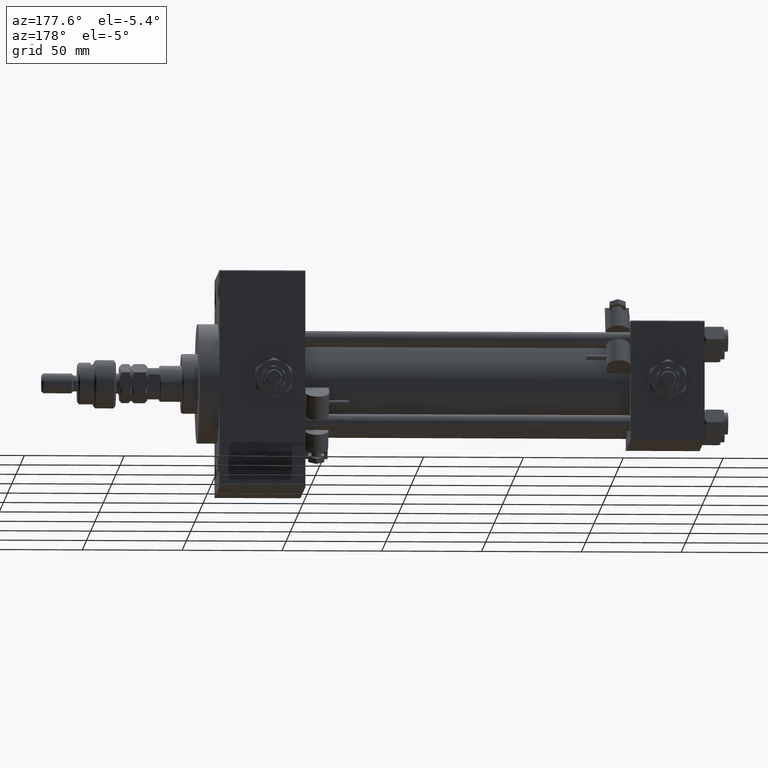
[diagram: clean part render]
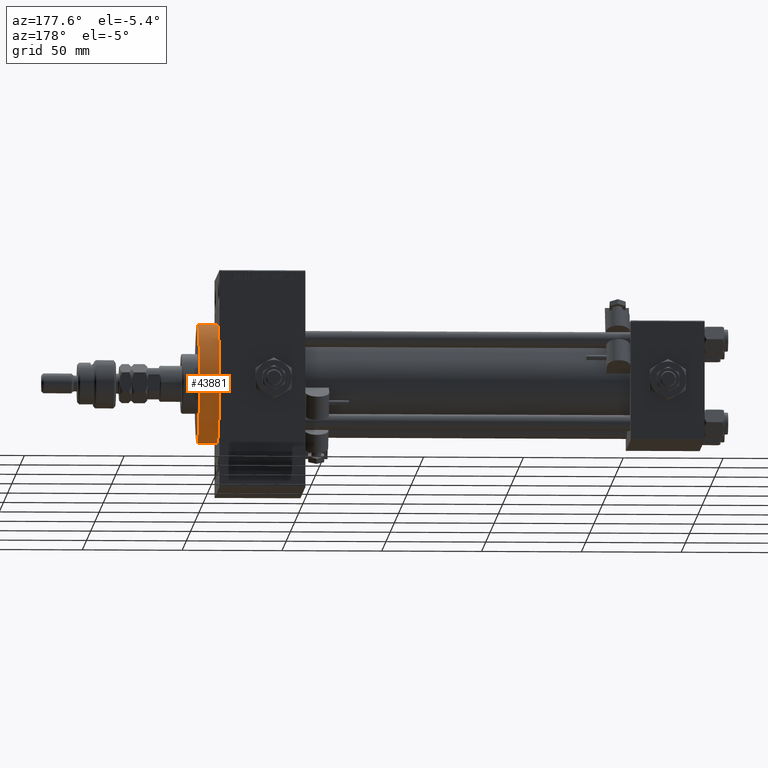
[diagram: same view with one face highlighted and labeled with its STEP entity id]
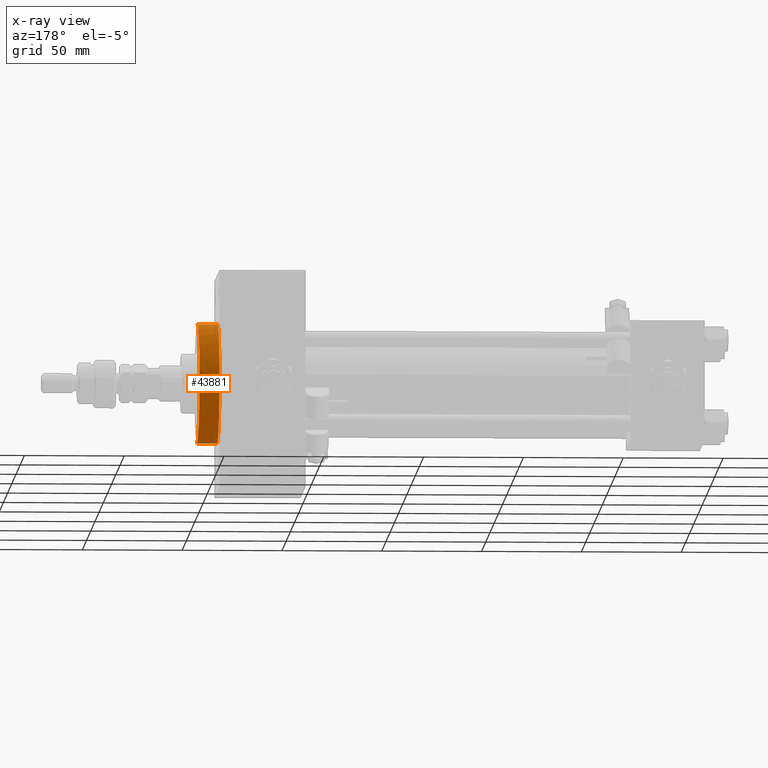
[diagram: x-ray of the same camera — body ghosted, the highlighted face saturated]
A machine part, auxiliary view. The second image highlights one B-rep face of the part: STEP entity #43881.
The next image is the same camera in x-ray: the body ghosted, the highlighted face saturated — about 0% of this face is hidden behind the body in this view.
In plain terms, the highlighted cylindrical surface (partial cylindrical patch) has radius 30 mm, axis along (-1, -0, -0).
Its self-contained STEP definition (entity closure, byte-faithful):
#1526 = VERTEX_POINT ( 'NONE', #38300 ) ;
#1915 = EDGE_CURVE ( 'NONE', #23586, #14163, #12482, .T. ) ;
#1995 = DIRECTION ( 'NONE',  ( -1.000000000000000000, -0.000000000000000000, -0.000000000000000000 ) ) ;
#2186 = DIRECTION ( 'NONE',  ( 1.000000000000000000, 0.000000000000000000, 0.000000000000000000 ) ) ;
#3598 = VECTOR ( 'NONE', #44250, 1000.000000000000000 ) ;
#3683 = CARTESIAN_POINT ( 'NONE',  ( 253.0000000000000000, 3.673940397442059178E-15, -30.00000000000000000 ) ) ;
#4584 = CARTESIAN_POINT ( 'NONE',  ( 253.0000000000000000, 0.000000000000000000, 30.00000000000000000 ) ) ;
#5414 = ORIENTED_EDGE ( 'NONE', *, *, #40904, .T. ) ;
#7855 = CIRCLE ( 'NONE', #31932, 30.00000000000000000 ) ;
#9532 = DIRECTION ( 'NONE',  ( 0.000000000000000000, 0.000000000000000000, 1.000000000000000000 ) ) ;
#10584 = CARTESIAN_POINT ( 'NONE',  ( 243.0000000000000000, 0.000000000000000000, 0.000000000000000000 ) ) ;
#12239 = ORIENTED_EDGE ( 'NONE', *, *, #40601, .F. ) ;
#12482 = CIRCLE ( 'NONE', #31387, 30.00000000000000000 ) ;
#13120 = AXIS2_PLACEMENT_3D ( 'NONE', #17843, #1995, #9532 ) ;
#14163 = VERTEX_POINT ( 'NONE', #49044 ) ;
#14814 = LINE ( 'NONE', #15341, #19938 ) ;
#15341 = CARTESIAN_POINT ( 'NONE',  ( 253.0000000000000000, 3.673940397442059178E-15, -30.00000000000000000 ) ) ;
#17843 = CARTESIAN_POINT ( 'NONE',  ( 253.0000000000000000, 0.000000000000000000, 0.000000000000000000 ) ) ;
#19091 = EDGE_CURVE ( 'NONE', #51305, #33020, #29264, .T. ) ;
#19938 = VECTOR ( 'NONE', #39038, 1000.000000000000000 ) ;
#21899 = FACE_OUTER_BOUND ( 'NONE', #39470, .T. ) ;
#23586 = VERTEX_POINT ( 'NONE', #41948 ) ;
#26108 = DIRECTION ( 'NONE',  ( 0.000000000000000000, 0.000000000000000000, -1.000000000000000000 ) ) ;
#26943 = CARTESIAN_POINT ( 'NONE',  ( 243.0000000000000000, 0.000000000000000000, 0.000000000000000000 ) ) ;
#27007 = DIRECTION ( 'NONE',  ( 1.000000000000000000, 0.000000000000000000, 0.000000000000000000 ) ) ;
#27598 = CARTESIAN_POINT ( 'NONE',  ( 253.0000000000000000, 0.000000000000000000, 30.00000000000000000 ) ) ;
#29264 = CIRCLE ( 'NONE', #30995, 30.00000000000000000 ) ;
#30139 = CARTESIAN_POINT ( 'NONE',  ( 253.0000000000000000, 0.000000000000000000, 0.000000000000000000 ) ) ;
#30766 = CYLINDRICAL_SURFACE ( 'NONE', #13120, 30.00000000000000000 ) ;
#30995 = AXIS2_PLACEMENT_3D ( 'NONE', #30139, #42248, #26108 ) ;
#31387 = AXIS2_PLACEMENT_3D ( 'NONE', #26943, #2186, #43329 ) ;
#31476 = ORIENTED_EDGE ( 'NONE', *, *, #1915, .T. ) ;
#31566 = DIRECTION ( 'NONE',  ( 0.000000000000000000, 0.000000000000000000, -1.000000000000000000 ) ) ;
#31932 = AXIS2_PLACEMENT_3D ( 'NONE', #10584, #27007, #31566 ) ;
#33020 = VERTEX_POINT ( 'NONE', #4584 ) ;
#38300 = CARTESIAN_POINT ( 'NONE',  ( 243.0000000000000000, 0.000000000000000000, 30.00000000000000000 ) ) ;
#39038 = DIRECTION ( 'NONE',  ( -1.000000000000000000, -0.000000000000000000, -0.000000000000000000 ) ) ;
#39470 = EDGE_LOOP ( 'NONE', ( #43324, #39497, #31476, #5414, #12239 ) ) ;
#39497 = ORIENTED_EDGE ( 'NONE', *, *, #41213, .T. ) ;
#39959 = LINE ( 'NONE', #27598, #3598 ) ;
#40601 = EDGE_CURVE ( 'NONE', #33020, #1526, #39959, .T. ) ;
#40904 = EDGE_CURVE ( 'NONE', #14163, #1526, #7855, .T. ) ;
#41213 = EDGE_CURVE ( 'NONE', #51305, #23586, #14814, .T. ) ;
#41948 = CARTESIAN_POINT ( 'NONE',  ( 243.0000000000000000, 3.673940397442059178E-15, -30.00000000000000000 ) ) ;
#42248 = DIRECTION ( 'NONE',  ( 1.000000000000000000, 0.000000000000000000, 0.000000000000000000 ) ) ;
#43324 = ORIENTED_EDGE ( 'NONE', *, *, #19091, .F. ) ;
#43329 = DIRECTION ( 'NONE',  ( 0.000000000000000000, 0.000000000000000000, -1.000000000000000000 ) ) ;
#43881 = ADVANCED_FACE ( 'NONE', ( #21899 ), #30766, .T. ) ;
#44250 = DIRECTION ( 'NONE',  ( -1.000000000000000000, -0.000000000000000000, -0.000000000000000000 ) ) ;
#49044 = CARTESIAN_POINT ( 'NONE',  ( 243.0000000000000000, 30.00000000000000000, 0.000000000000000000 ) ) ;
#51305 = VERTEX_POINT ( 'NONE', #3683 ) ;